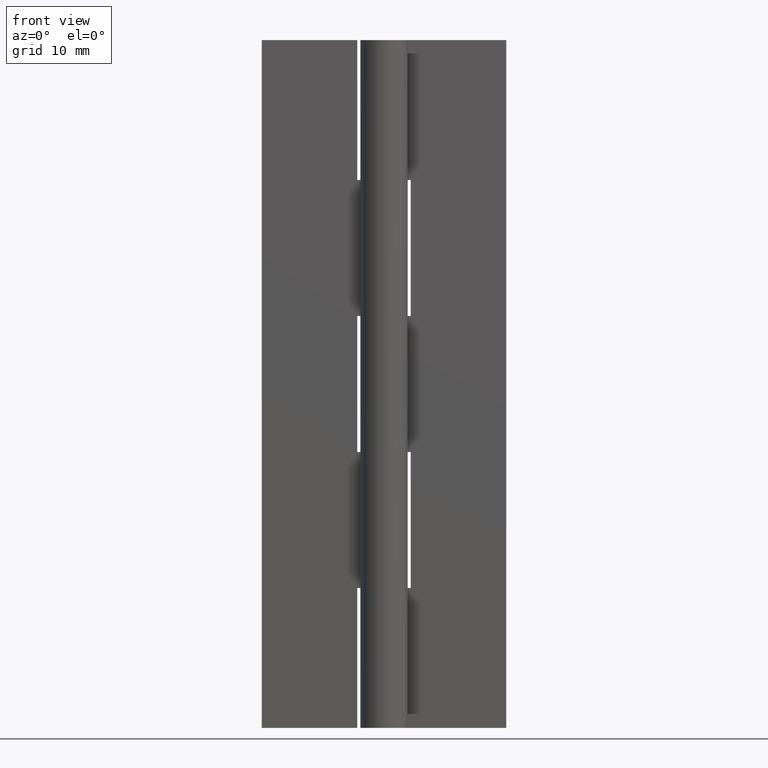
[diagram: clean part render]
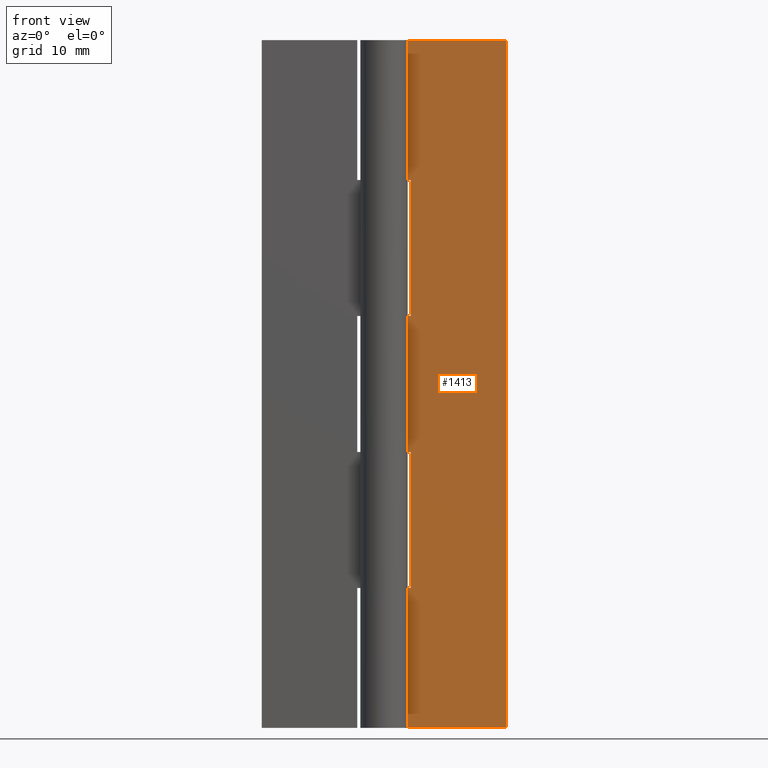
[diagram: same view with one face highlighted and labeled with its STEP entity id]
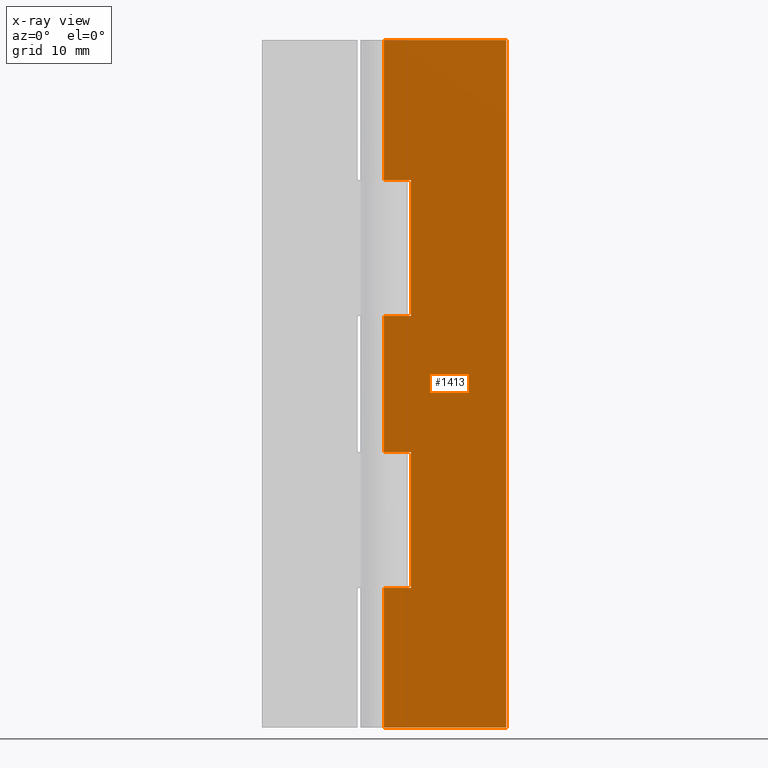
[diagram: x-ray of the same camera — body ghosted, the highlighted face saturated]
A machine part, front view. The second image highlights one B-rep face of the part: STEP entity #1413.
The next image is the same camera in x-ray: the body ghosted, the highlighted face saturated — about 0% of this face is hidden behind the body in this view.
In plain terms, the highlighted face is a freeform B-spline surface patch.
Its self-contained STEP definition (entity closure, byte-faithful):
#814=CARTESIAN_POINT('',(3.499999999999901,1.499999999999946,36.100006000000093));
#815=VERTEX_POINT('',#814);
#821=CARTESIAN_POINT('',(0.0,1.500000000000000,36.100006000000093));
#822=VERTEX_POINT('',#821);
#823=CARTESIAN_POINT('',(0.0,1.500000000000000,36.100006000000093));
#824=CARTESIAN_POINT('',(3.499999999999901,1.499999999999946,36.100006000000093));
#825=QUASI_UNIFORM_CURVE('',1,(#823,#824),.UNSPECIFIED.,.F.,.U.);
#826=EDGE_CURVE('',#822,#815,#825,.T.);
#913=CARTESIAN_POINT('',(0.0,1.500000000000000,18.300003000000000));
#914=VERTEX_POINT('',#913);
#934=CARTESIAN_POINT('',(3.499999999999901,1.499999999999946,18.300003000000000));
#935=VERTEX_POINT('',#934);
#936=CARTESIAN_POINT('',(3.499999999999901,1.499999999999946,18.300003000000000));
#937=CARTESIAN_POINT('',(0.0,1.500000000000000,18.300003000000000));
#938=QUASI_UNIFORM_CURVE('',1,(#936,#937),.UNSPECIFIED.,.F.,.U.);
#939=EDGE_CURVE('',#935,#914,#938,.T.);
#975=CARTESIAN_POINT('',(3.499999999999901,1.499999999999946,36.100006000000093));
#976=CARTESIAN_POINT('',(3.499999999999901,1.499999999999946,18.300003000000000));
#977=QUASI_UNIFORM_CURVE('',1,(#975,#976),.UNSPECIFIED.,.F.,.U.);
#978=EDGE_CURVE('',#815,#935,#977,.T.);
#1018=CARTESIAN_POINT('',(0.0,1.500000000000000,53.899993999999893));
#1019=VERTEX_POINT('',#1018);
#1039=CARTESIAN_POINT('',(3.499999999999901,1.499999999999946,53.899993999999893));
#1040=VERTEX_POINT('',#1039);
#1041=CARTESIAN_POINT('',(3.499999999999901,1.499999999999946,53.899993999999893));
#1042=CARTESIAN_POINT('',(0.0,1.500000000000000,53.899993999999893));
#1043=QUASI_UNIFORM_CURVE('',1,(#1041,#1042),.UNSPECIFIED.,.F.,.U.);
#1044=EDGE_CURVE('',#1040,#1019,#1043,.T.);
#1089=CARTESIAN_POINT('',(3.499999999999901,1.499999999999946,71.699996999999996));
#1090=VERTEX_POINT('',#1089);
#1096=CARTESIAN_POINT('',(0.0,1.500000000000000,71.699996999999996));
#1097=VERTEX_POINT('',#1096);
#1098=CARTESIAN_POINT('',(0.0,1.500000000000000,71.699996999999996));
#1099=CARTESIAN_POINT('',(3.499999999999901,1.499999999999946,71.699996999999996));
#1100=QUASI_UNIFORM_CURVE('',1,(#1098,#1099),.UNSPECIFIED.,.F.,.U.);
#1101=EDGE_CURVE('',#1097,#1090,#1100,.T.);
#1165=CARTESIAN_POINT('',(3.499999999999901,1.499999999999946,71.699996999999996));
#1166=CARTESIAN_POINT('',(3.499999999999901,1.499999999999946,53.899993999999893));
#1167=QUASI_UNIFORM_CURVE('',1,(#1165,#1166),.UNSPECIFIED.,.F.,.U.);
#1168=EDGE_CURVE('',#1090,#1040,#1167,.T.);
#1208=CARTESIAN_POINT('',(0.0,1.500000000000000,90.0));
#1209=VERTEX_POINT('',#1208);
#1229=CARTESIAN_POINT('',(16.0,1.500000000000000,90.0));
#1230=VERTEX_POINT('',#1229);
#1231=CARTESIAN_POINT('',(16.0,1.500000000000000,90.0));
#1232=CARTESIAN_POINT('',(0.0,1.500000000000000,90.0));
#1233=QUASI_UNIFORM_CURVE('',1,(#1231,#1232),.UNSPECIFIED.,.F.,.U.);
#1234=EDGE_CURVE('',#1230,#1209,#1233,.T.);
#1286=CARTESIAN_POINT('',(16.0,1.500000000000000,0.0));
#1287=VERTEX_POINT('',#1286);
#1293=CARTESIAN_POINT('',(0.0,1.500000000000000,0.0));
#1294=VERTEX_POINT('',#1293);
#1295=CARTESIAN_POINT('',(16.0,1.500000000000000,0.0));
#1296=CARTESIAN_POINT('',(0.0,1.500000000000000,0.0));
#1297=QUASI_UNIFORM_CURVE('',1,(#1295,#1296),.UNSPECIFIED.,.F.,.U.);
#1298=EDGE_CURVE('',#1287,#1294,#1297,.T.);
#1372=CARTESIAN_POINT('',(0.0,1.500000000000000,36.100006000000093));
#1373=CARTESIAN_POINT('',(0.0,1.500000000000000,53.899993999999893));
#1374=QUASI_UNIFORM_CURVE('',1,(#1372,#1373),.UNSPECIFIED.,.F.,.U.);
#1375=EDGE_CURVE('',#822,#1019,#1374,.T.);
#1382=CARTESIAN_POINT('',(-0.799199968988895,1.500000000000000,-4.495499825562538));
#1383=CARTESIAN_POINT('',(-0.799199968988895,1.500000000000000,94.495502239550646));
#1384=CARTESIAN_POINT('',(16.799200398142339,1.500000000000000,-4.495499825562538));
#1385=CARTESIAN_POINT('',(16.799200398142339,1.500000000000000,94.495502239550646));
#1386=B_SPLINE_SURFACE_WITH_KNOTS('',1,1,((#1382,#1384),(#1383,#1385)),.UNSPECIFIED.,.F.,.F.,.U.,(2,2),(2,2),(0.0,98.991002065113179),(0.0,17.598400367131230),.UNSPECIFIED.);
#1387=ORIENTED_EDGE('',*,*,#978,.T.);
#1388=ORIENTED_EDGE('',*,*,#939,.T.);
#1389=CARTESIAN_POINT('',(0.0,1.500000000000000,0.0));
#1390=CARTESIAN_POINT('',(0.0,1.500000000000000,18.300003000000000));
#1391=QUASI_UNIFORM_CURVE('',1,(#1389,#1390),.UNSPECIFIED.,.F.,.U.);
#1392=EDGE_CURVE('',#1294,#914,#1391,.T.);
#1393=ORIENTED_EDGE('',*,*,#1392,.F.);
#1394=ORIENTED_EDGE('',*,*,#1298,.F.);
#1395=CARTESIAN_POINT('',(16.0,1.500000000000000,0.0));
#1396=CARTESIAN_POINT('',(16.0,1.500000000000000,90.0));
#1397=QUASI_UNIFORM_CURVE('',1,(#1395,#1396),.UNSPECIFIED.,.F.,.U.);
#1398=EDGE_CURVE('',#1287,#1230,#1397,.T.);
#1399=ORIENTED_EDGE('',*,*,#1398,.T.);
#1400=ORIENTED_EDGE('',*,*,#1234,.T.);
#1401=CARTESIAN_POINT('',(0.0,1.500000000000000,71.699996999999996));
#1402=CARTESIAN_POINT('',(0.0,1.500000000000000,90.0));
#1403=QUASI_UNIFORM_CURVE('',1,(#1401,#1402),.UNSPECIFIED.,.F.,.U.);
#1404=EDGE_CURVE('',#1097,#1209,#1403,.T.);
#1405=ORIENTED_EDGE('',*,*,#1404,.F.);
#1406=ORIENTED_EDGE('',*,*,#1101,.T.);
#1407=ORIENTED_EDGE('',*,*,#1168,.T.);
#1408=ORIENTED_EDGE('',*,*,#1044,.T.);
#1409=ORIENTED_EDGE('',*,*,#1375,.F.);
#1410=ORIENTED_EDGE('',*,*,#826,.T.);
#1411=EDGE_LOOP('',(#1387,#1388,#1393,#1394,#1399,#1400,#1405,#1406,#1407,#1408,#1409,#1410));
#1412=FACE_OUTER_BOUND('',#1411,.T.);
#1413=ADVANCED_FACE('',(#1412),#1386,.F.);